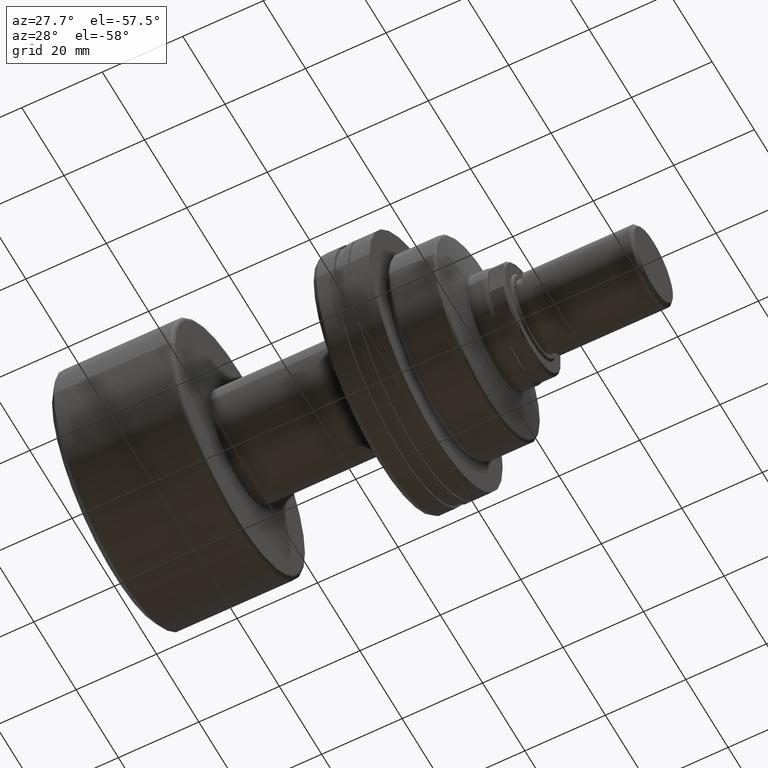
[diagram: clean part render]
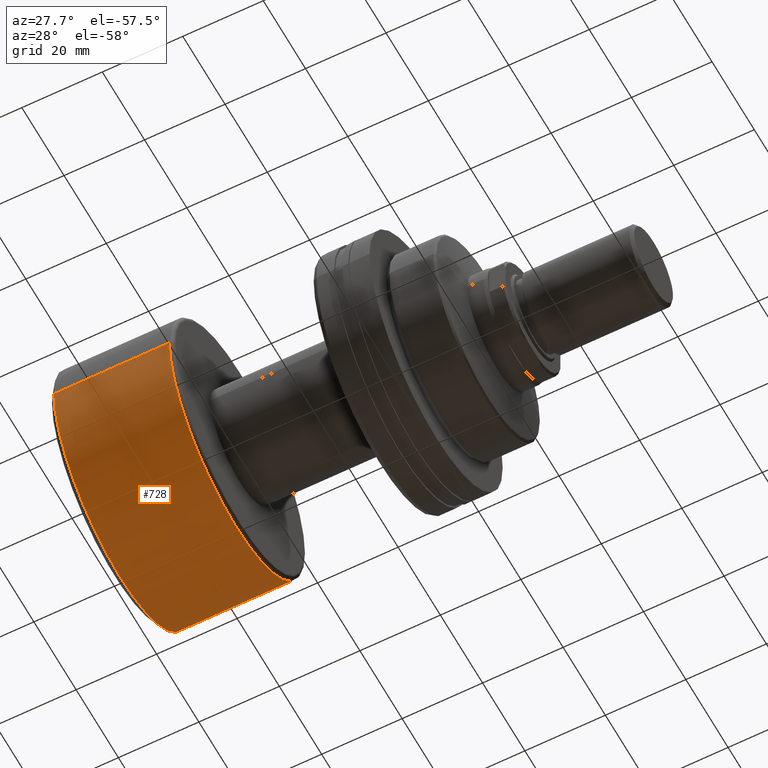
[diagram: same view with one face highlighted and labeled with its STEP entity id]
A machine part, auxiliary view. The second image highlights one B-rep face of the part: STEP entity #728.
In plain terms, the highlighted cylindrical surface (partial cylindrical patch) has radius 31.5 mm, axis along (-1, -0, -0).
Its self-contained STEP definition (entity closure, byte-faithful):
#53 = AXIS2_PLACEMENT_3D ( 'NONE', #965, #1802, #2467 ) ;
#167 = EDGE_CURVE ( 'NONE', #572, #1079, #273, .T. ) ;
#273 = CIRCLE ( 'NONE', #53, 31.50000000000000000 ) ;
#429 = CARTESIAN_POINT ( 'NONE',  ( 3.369058314517557588E-16, -31.50000000000000000, 0.000000000000000000 ) ) ;
#572 = VERTEX_POINT ( 'NONE', #731 ) ;
#576 = AXIS2_PLACEMENT_3D ( 'NONE', #2119, #1911, #1491 ) ;
#728 = ADVANCED_FACE ( 'NONE', ( #1086 ), #1049, .T. ) ;
#731 = CARTESIAN_POINT ( 'NONE',  ( 1.500000000000003331, 31.50000000000000000, 0.000000000000000000 ) ) ;
#794 = ORIENTED_EDGE ( 'NONE', *, *, #2538, .T. ) ;
#932 = CARTESIAN_POINT ( 'NONE',  ( 30.19999999999999929, 31.50000000000000000, 3.857637417314162689E-15 ) ) ;
#965 = CARTESIAN_POINT ( 'NONE',  ( 1.500000000000003553, 1.604313483103602168E-17, 0.000000000000000000 ) ) ;
#1049 = CYLINDRICAL_SURFACE ( 'NONE', #576, 31.50000000000000000 ) ;
#1079 = VERTEX_POINT ( 'NONE', #1186 ) ;
#1086 = FACE_OUTER_BOUND ( 'NONE', #1364, .T. ) ;
#1186 = CARTESIAN_POINT ( 'NONE',  ( 1.500000000000003775, -31.50000000000000000, 3.857637417314162689E-15 ) ) ;
#1266 = DIRECTION ( 'NONE',  ( -1.000000000000000000, -1.069542322069065801E-17, -0.000000000000000000 ) ) ;
#1277 = EDGE_CURVE ( 'NONE', #2319, #1079, #2569, .T. ) ;
#1298 = ORIENTED_EDGE ( 'NONE', *, *, #1277, .T. ) ;
#1347 = DIRECTION ( 'NONE',  ( -1.000000000000000000, -1.069542322069065801E-17, -0.000000000000000000 ) ) ;
#1364 = EDGE_LOOP ( 'NONE', ( #1509, #794, #1298, #2393 ) ) ;
#1406 = CARTESIAN_POINT ( 'NONE',  ( 30.19999999999999929, -31.50000000000000000, 0.000000000000000000 ) ) ;
#1491 = DIRECTION ( 'NONE',  ( 1.069542322069065955E-17, -1.000000000000000000, 0.000000000000000000 ) ) ;
#1507 = CARTESIAN_POINT ( 'NONE',  ( 30.19999999999999929, 3.230017812648578475E-16, 0.000000000000000000 ) ) ;
#1509 = ORIENTED_EDGE ( 'NONE', *, *, #2197, .F. ) ;
#1802 = DIRECTION ( 'NONE',  ( -1.000000000000000000, -1.069542322069065801E-17, -0.000000000000000000 ) ) ;
#1804 = LINE ( 'NONE', #2621, #2242 ) ;
#1833 = DIRECTION ( 'NONE',  ( 0.000000000000000000, -1.000000000000000000, 0.000000000000000000 ) ) ;
#1911 = DIRECTION ( 'NONE',  ( -1.000000000000000000, -1.069542322069065801E-17, -0.000000000000000000 ) ) ;
#2002 = VECTOR ( 'NONE', #1266, 1000.000000000000000 ) ;
#2065 = CIRCLE ( 'NONE', #2148, 31.50000000000000000 ) ;
#2119 = CARTESIAN_POINT ( 'NONE',  ( 0.000000000000000000, 0.000000000000000000, 0.000000000000000000 ) ) ;
#2148 = AXIS2_PLACEMENT_3D ( 'NONE', #1507, #2379, #1833 ) ;
#2197 = EDGE_CURVE ( 'NONE', #2662, #572, #1804, .T. ) ;
#2242 = VECTOR ( 'NONE', #1347, 1000.000000000000000 ) ;
#2319 = VERTEX_POINT ( 'NONE', #1406 ) ;
#2379 = DIRECTION ( 'NONE',  ( -1.000000000000000000, -1.069542322069065801E-17, -0.000000000000000000 ) ) ;
#2393 = ORIENTED_EDGE ( 'NONE', *, *, #167, .F. ) ;
#2467 = DIRECTION ( 'NONE',  ( 1.376764663473656463E-17, -1.000000000000000000, 0.000000000000000000 ) ) ;
#2538 = EDGE_CURVE ( 'NONE', #2662, #2319, #2065, .T. ) ;
#2569 = LINE ( 'NONE', #429, #2002 ) ;
#2621 = CARTESIAN_POINT ( 'NONE',  ( -3.369058314517557588E-16, 31.50000000000000000, 3.857637417314162689E-15 ) ) ;
#2662 = VERTEX_POINT ( 'NONE', #932 ) ;